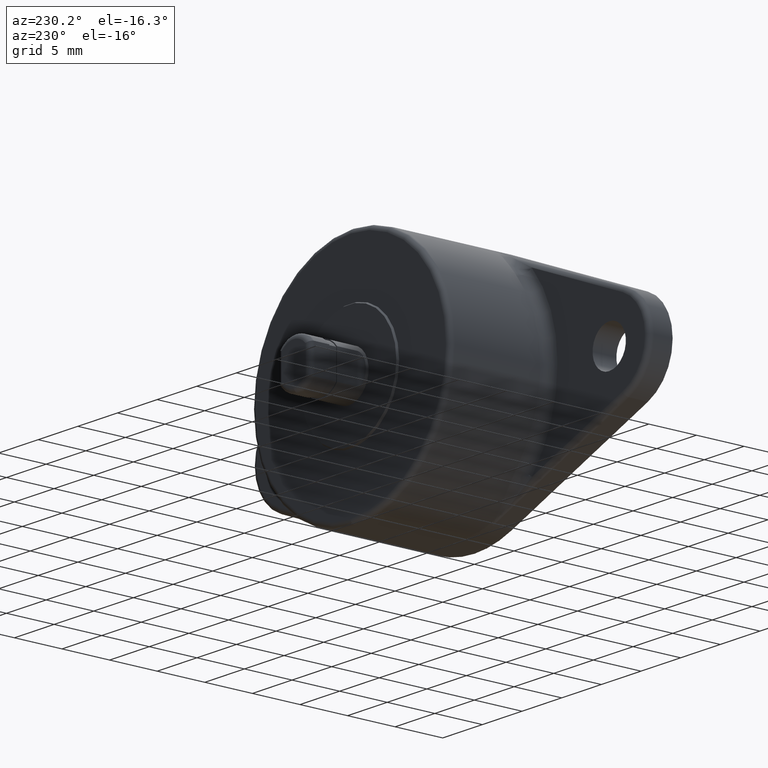
[diagram: clean part render]
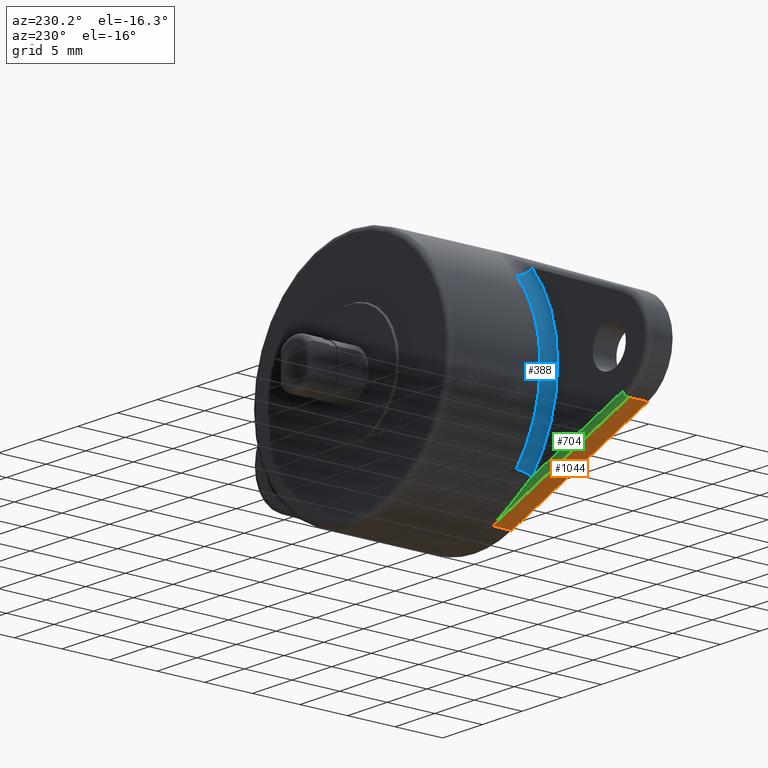
[diagram: same view with three faces highlighted in distinct colors, each labeled with its STEP entity id]
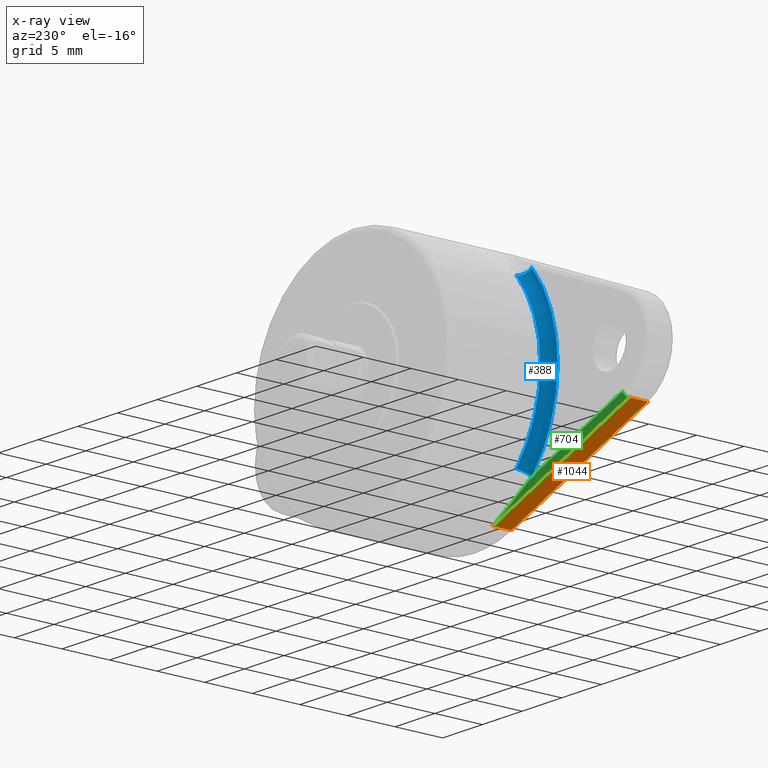
[diagram: x-ray of the same camera — body ghosted, the three highlighted faces saturated]
A machine part, auxiliary view with three faces highlighted in distinct colors.
The next image is the same camera in x-ray (body ghosted, the three faces saturated) — at least one of them is partly hidden behind the body in this view.
Their STEP definitions:

[orange] entity #1044 — the highlighted planar face has unit normal (0.375, 0, 0.927).
#1 = CARTESIAN_POINT ( 'NONE',  ( -4.687500000031076500, 4.336808689942017700E-016, -11.58781013600035000 ) ) ;
#27 = ORIENTED_EDGE ( 'NONE', *, *, #1758, .F. ) ;
#59 = CARTESIAN_POINT ( 'NONE',  ( -4.687500000075023500, 1.999999999115181800, -11.58781013598257200 ) ) ;
#91 = ORIENTED_EDGE ( 'NONE', *, *, #903, .F. ) ;
#139 = VERTEX_POINT ( 'NONE', #478 ) ;
#173 = ORIENTED_EDGE ( 'NONE', *, *, #1018, .T. ) ;
#249 = CARTESIAN_POINT ( 'NONE',  ( -4.687500000031076500, 4.336808689942017700E-016, -11.58781013600035000 ) ) ;
#254 = LINE ( 'NONE', #703, #1058 ) ;
#389 = FACE_OUTER_BOUND ( 'NONE', #1407, .T. ) ;
#400 = DIRECTION ( 'NONE',  ( 0.9270248108836970400, 0.0000000000000000000, -0.3750000000080612200 ) ) ;
#435 = LINE ( 'NONE', #59, #1669 ) ;
#478 = CARTESIAN_POINT ( 'NONE',  ( -4.687500000031075600, 1.999999999115181800, -11.58781013600035000 ) ) ;
#530 = CARTESIAN_POINT ( 'NONE',  ( -21.87499999988915500, 4.336808689942017700E-016, -4.635124054231659400 ) ) ;
#543 = CARTESIAN_POINT ( 'NONE',  ( -4.687500000031075600, 4.336808689942017700E-016, -11.58781013600035000 ) ) ;
#703 = CARTESIAN_POINT ( 'NONE',  ( -21.87499999988915500, 4.336808689942017700E-016, -4.635124054231659400 ) ) ;
#715 = LINE ( 'NONE', #543, #1892 ) ;
#756 = VERTEX_POINT ( 'NONE', #1578 ) ;
#765 = AXIS2_PLACEMENT_3D ( 'NONE', #249, #1325, #400 ) ;
#778 = DIRECTION ( 'NONE',  ( 0.9270248108836969300, -0.0000000000000000000, -0.3750000000080612200 ) ) ;
#866 = VECTOR ( 'NONE', #778, 1000.000000000000100 ) ;
#881 = VERTEX_POINT ( 'NONE', #530 ) ;
#903 = EDGE_CURVE ( 'NONE', #881, #1488, #1692, .T. ) ;
#1018 = EDGE_CURVE ( 'NONE', #756, #139, #435, .T. ) ;
#1035 = CARTESIAN_POINT ( 'NONE',  ( -4.687500000031075600, 4.336808689942017700E-016, -11.58781013600035000 ) ) ;
#1044 = ADVANCED_FACE ( 'NONE', ( #389 ), #1289, .F. ) ;
#1058 = VECTOR ( 'NONE', #1470, 1000.000000000000000 ) ;
#1124 = DIRECTION ( 'NONE',  ( 0.9270248108836970400, -0.0000000000000000000, -0.3750000000080612200 ) ) ;
#1289 = PLANE ( 'NONE',  #765 ) ;
#1325 = DIRECTION ( 'NONE',  ( 0.3750000000080612200, 0.0000000000000000000, 0.9270248108836970400 ) ) ;
#1407 = EDGE_LOOP ( 'NONE', ( #1803, #173, #27, #91 ) ) ;
#1465 = DIRECTION ( 'NONE',  ( -0.0000000000000000000, 1.000000000000000000, -0.0000000000000000000 ) ) ;
#1470 = DIRECTION ( 'NONE',  ( -0.0000000000000000000, 1.000000000000000000, -0.0000000000000000000 ) ) ;
#1488 = VERTEX_POINT ( 'NONE', #1035 ) ;
#1578 = CARTESIAN_POINT ( 'NONE',  ( -21.87499999988915500, 1.999999999115181800, -4.635124054231659400 ) ) ;
#1669 = VECTOR ( 'NONE', #1124, 999.9999999999998900 ) ;
#1692 = LINE ( 'NONE', #1, #866 ) ;
#1758 = EDGE_CURVE ( 'NONE', #1488, #139, #715, .T. ) ;
#1782 = EDGE_CURVE ( 'NONE', #881, #756, #254, .T. ) ;
#1803 = ORIENTED_EDGE ( 'NONE', *, *, #1782, .T. ) ;
#1892 = VECTOR ( 'NONE', #1465, 1000.000000000000000 ) ;

[blue] entity #388 — the highlighted toroidal blend (fillet) surface has major radius 13.5 mm and minor (blend) radius 1 mm.
#21 = DIRECTION ( 'NONE',  ( 0.7580245792555384600, 0.0000000000000000000, -0.6522259863302473100 ) ) ;
#23 = CIRCLE ( 'NONE', #1715, 0.9999999993501754700 ) ;
#105 = AXIS2_PLACEMENT_3D ( 'NONE', #1393, #462, #1544 ) ;
#123 = EDGE_CURVE ( 'NONE', #1158, #590, #717, .T. ) ;
#144 = EDGE_CURVE ( 'NONE', #1609, #590, #23, .T. ) ;
#150 = ORIENTED_EDGE ( 'NONE', *, *, #144, .T. ) ;
#177 = CARTESIAN_POINT ( 'NONE',  ( 0.0000000000000000000, 3.499999999350175800, 0.0000000000000000000 ) ) ;
#225 = CIRCLE ( 'NONE', #105, 13.49999999935017700 ) ;
#291 = AXIS2_PLACEMENT_3D ( 'NONE', #177, #1243, #1567 ) ;
#379 = DIRECTION ( 'NONE',  ( -0.0000000000000000000, 1.000000000000000000, -0.0000000000000000000 ) ) ;
#388 = ADVANCED_FACE ( 'NONE', ( #910 ), #1283, .F. ) ;
#407 = CIRCLE ( 'NONE', #1210, 0.9999999993501760300 ) ;
#462 = DIRECTION ( 'NONE',  ( 0.0000000000000000000, -1.000000000000000000, 0.0000000000000000000 ) ) ;
#562 = ORIENTED_EDGE ( 'NONE', *, *, #570, .F. ) ;
#570 = EDGE_CURVE ( 'NONE', #1609, #1718, #225, .T. ) ;
#590 = VERTEX_POINT ( 'NONE', #773 ) ;
#653 = CARTESIAN_POINT ( 'NONE',  ( -10.23333181940181900, 3.499999999350175800, -8.805050815098855600 ) ) ;
#717 = CIRCLE ( 'NONE', #1388, 12.50000000000000000 ) ;
#773 = CARTESIAN_POINT ( 'NONE',  ( -9.475307240694228000, 3.499999999350175800, 8.152824829128096700 ) ) ;
#802 = DIRECTION ( 'NONE',  ( 0.7580245792514370700, 0.0000000000000000000, 0.6522259863350139400 ) ) ;
#877 = CARTESIAN_POINT ( 'NONE',  ( -9.475307240642964100, 3.499999999350175800, -8.152824829187672200 ) ) ;
#910 = FACE_OUTER_BOUND ( 'NONE', #1482, .T. ) ;
#941 = DIRECTION ( 'NONE',  ( 0.6522259863302472000, 4.892789529441920800E-015, 0.7580245792555386800 ) ) ;
#975 = EDGE_CURVE ( 'NONE', #1718, #1158, #407, .T. ) ;
#1158 = VERTEX_POINT ( 'NONE', #877 ) ;
#1203 = CARTESIAN_POINT ( 'NONE',  ( -10.23333181945717700, 2.500000000000000400, 8.805050815034514100 ) ) ;
#1210 = AXIS2_PLACEMENT_3D ( 'NONE', #653, #1732, #802 ) ;
#1243 = DIRECTION ( 'NONE',  ( -0.0000000000000000000, 1.000000000000000000, -0.0000000000000000000 ) ) ;
#1247 = CARTESIAN_POINT ( 'NONE',  ( -10.23333181940181900, 2.500000000000000400, -8.805050815098855600 ) ) ;
#1283 = TOROIDAL_SURFACE ( 'NONE', #291, 13.49999999935017700, 0.9999999993501752500 ) ;
#1306 = CARTESIAN_POINT ( 'NONE',  ( 0.0000000000000000000, 3.499999999350175800, 0.0000000000000000000 ) ) ;
#1318 = CARTESIAN_POINT ( 'NONE',  ( -10.23333181945718100, 3.499999999350175800, 8.805050815034510600 ) ) ;
#1388 = AXIS2_PLACEMENT_3D ( 'NONE', #1306, #379, #1463 ) ;
#1393 = CARTESIAN_POINT ( 'NONE',  ( 0.0000000000000000000, 2.500000000000000400, 0.0000000000000000000 ) ) ;
#1414 = ORIENTED_EDGE ( 'NONE', *, *, #123, .F. ) ;
#1463 = DIRECTION ( 'NONE',  ( 0.0000000000000000000, 0.0000000000000000000, 1.000000000000000000 ) ) ;
#1482 = EDGE_LOOP ( 'NONE', ( #150, #1414, #1548, #562 ) ) ;
#1544 = DIRECTION ( 'NONE',  ( 0.0000000000000000000, 0.0000000000000000000, 1.000000000000000000 ) ) ;
#1548 = ORIENTED_EDGE ( 'NONE', *, *, #975, .F. ) ;
#1567 = DIRECTION ( 'NONE',  ( 0.0000000000000000000, 0.0000000000000000000, 1.000000000000000000 ) ) ;
#1609 = VERTEX_POINT ( 'NONE', #1203 ) ;
#1715 = AXIS2_PLACEMENT_3D ( 'NONE', #1318, #941, #21 ) ;
#1718 = VERTEX_POINT ( 'NONE', #1247 ) ;
#1732 = DIRECTION ( 'NONE',  ( -0.6522259863350139400, 0.0000000000000000000, 0.7580245792514370700 ) ) ;

[green] entity #704 — the highlighted cylindrical surface (edge-blend (fillet) strip) has radius 0.5 mm, axis along (-0.927, 0, 0.375).
#52 = CARTESIAN_POINT ( 'NONE',  ( -7.976818404479203700, 2.372394297598993300, -10.08400092168526500 ) ) ;
#59 = CARTESIAN_POINT ( 'NONE',  ( -4.687500000075023500, 1.999999999115181800, -11.58781013598257200 ) ) ;
#88 = ORIENTED_EDGE ( 'NONE', *, *, #267, .F. ) ;
#139 = VERTEX_POINT ( 'NONE', #478 ) ;
#178 = CARTESIAN_POINT ( 'NONE',  ( -4.499999999695239300, 1.999999999115181800, -11.12429772973825200 ) ) ;
#210 = CARTESIAN_POINT ( 'NONE',  ( -5.644440539788972100, 2.114696206951013100, -11.20070862781650000 ) ) ;
#267 = EDGE_CURVE ( 'NONE', #1635, #756, #1520, .T. ) ;
#274 = VECTOR ( 'NONE', #646, 999.9999999999998900 ) ;
#325 = DIRECTION ( 'NONE',  ( -0.9270248108836969300, 0.0000000000000000000, 0.3750000000080612200 ) ) ;
#370 = FACE_OUTER_BOUND ( 'NONE', #1356, .T. ) ;
#435 = LINE ( 'NONE', #59, #1669 ) ;
#442 = DIRECTION ( 'NONE',  ( -0.9270248108836987000, 0.0000000000000000000, 0.3750000000080569400 ) ) ;
#478 = CARTESIAN_POINT ( 'NONE',  ( -4.687500000031075600, 1.999999999115181800, -11.58781013600035000 ) ) ;
#646 = DIRECTION ( 'NONE',  ( -0.9270248108836970400, -0.0000000000000000000, 0.3750000000080612200 ) ) ;
#704 = ADVANCED_FACE ( 'NONE', ( #370 ), #1499, .T. ) ;
#712 = EDGE_CURVE ( 'NONE', #1718, #1635, #1910, .T. ) ;
#746 = AXIS2_PLACEMENT_3D ( 'NONE', #1366, #442, #1517 ) ;
#756 = VERTEX_POINT ( 'NONE', #1578 ) ;
#809 = CARTESIAN_POINT ( 'NONE',  ( -10.23333181940181900, 2.500000000000000400, -8.805050815098855600 ) ) ;
#968 = CARTESIAN_POINT ( 'NONE',  ( -8.435939249685425500, 2.414583496325751100, -9.843050779130234000 ) ) ;
#1018 = EDGE_CURVE ( 'NONE', #756, #139, #435, .T. ) ;
#1031 = B_SPLINE_CURVE_WITH_KNOTS ( 'NONE', 3,
 ( #809, #1273, #1891, #968, #52, #1120, #210, #1284 ),
 .UNSPECIFIED., .F., .F.,
 ( 4, 2, 2, 4 ),
 ( 0.0000000000000000000, 0.001557934623447358600, 0.003115869246894717200, 0.006231738493789431800 ),
 .UNSPECIFIED. ) ;
#1087 = DIRECTION ( 'NONE',  ( 0.3750000000080605000, 0.0000000000000000000, 0.9270248108836972600 ) ) ;
#1120 = CARTESIAN_POINT ( 'NONE',  ( -6.587938851689449900, 2.230253746845210400, -10.77698892933883300 ) ) ;
#1124 = DIRECTION ( 'NONE',  ( 0.9270248108836970400, -0.0000000000000000000, -0.3750000000080612200 ) ) ;
#1164 = ORIENTED_EDGE ( 'NONE', *, *, #1018, .F. ) ;
#1170 = ORIENTED_EDGE ( 'NONE', *, *, #1337, .T. ) ;
#1247 = CARTESIAN_POINT ( 'NONE',  ( -10.23333181940181900, 2.500000000000000400, -8.805050815098855600 ) ) ;
#1273 = CARTESIAN_POINT ( 'NONE',  ( -9.791018210592948600, 2.500000000000000900, -9.079001395205686700 ) ) ;
#1284 = CARTESIAN_POINT ( 'NONE',  ( -4.687500000031075600, 1.999999999115181800, -11.58781013600035000 ) ) ;
#1337 = EDGE_CURVE ( 'NONE', #1718, #139, #1031, .T. ) ;
#1356 = EDGE_LOOP ( 'NONE', ( #1456, #1170, #1164, #88 ) ) ;
#1366 = CARTESIAN_POINT ( 'NONE',  ( -21.68749999955332100, 1.999999999115181800, -4.171611647969560200 ) ) ;
#1456 = ORIENTED_EDGE ( 'NONE', *, *, #712, .F. ) ;
#1499 = CYLINDRICAL_SURFACE ( 'NONE', #1653, 0.5000000008848191100 ) ;
#1517 = DIRECTION ( 'NONE',  ( 0.3750000000080575500, 0.0000000000000000000, 0.9270248108836984800 ) ) ;
#1520 = CIRCLE ( 'NONE', #746, 0.5000000008848184400 ) ;
#1578 = CARTESIAN_POINT ( 'NONE',  ( -21.87499999988915500, 1.999999999115181800, -4.635124054231659400 ) ) ;
#1635 = VERTEX_POINT ( 'NONE', #1827 ) ;
#1653 = AXIS2_PLACEMENT_3D ( 'NONE', #178, #325, #1087 ) ;
#1669 = VECTOR ( 'NONE', #1124, 999.9999999999998900 ) ;
#1718 = VERTEX_POINT ( 'NONE', #1247 ) ;
#1827 = CARTESIAN_POINT ( 'NONE',  ( -21.68749999955332100, 2.500000000000000400, -4.171611647969560200 ) ) ;
#1869 = CARTESIAN_POINT ( 'NONE',  ( -21.68749999955332100, 2.500000000000000400, -4.171611647969560200 ) ) ;
#1891 = CARTESIAN_POINT ( 'NONE',  ( -9.342894246173505800, 2.478050758204003200, -9.340598751484556300 ) ) ;
#1910 = LINE ( 'NONE', #1869, #274 ) ;